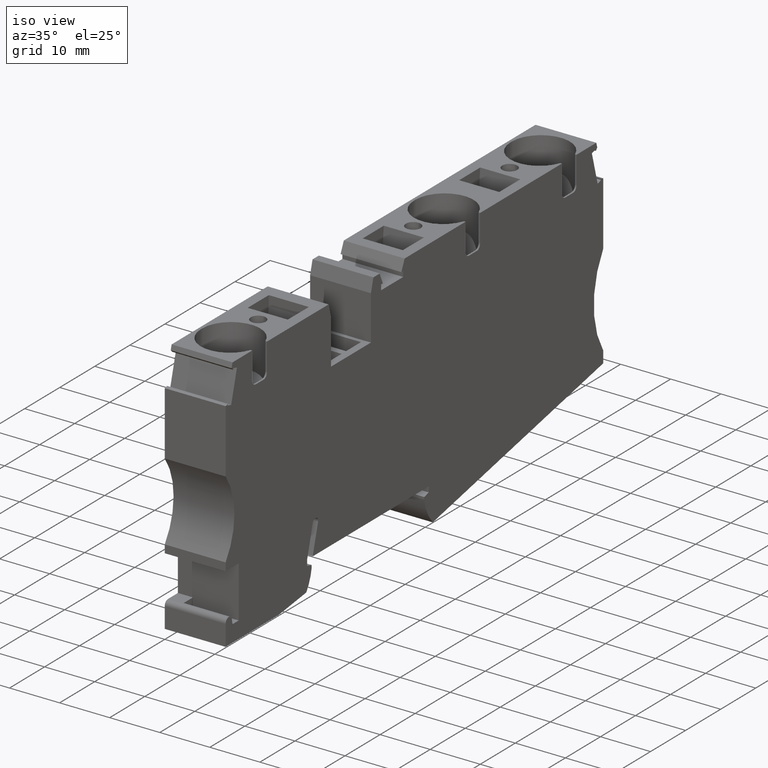
[diagram: clean part render]
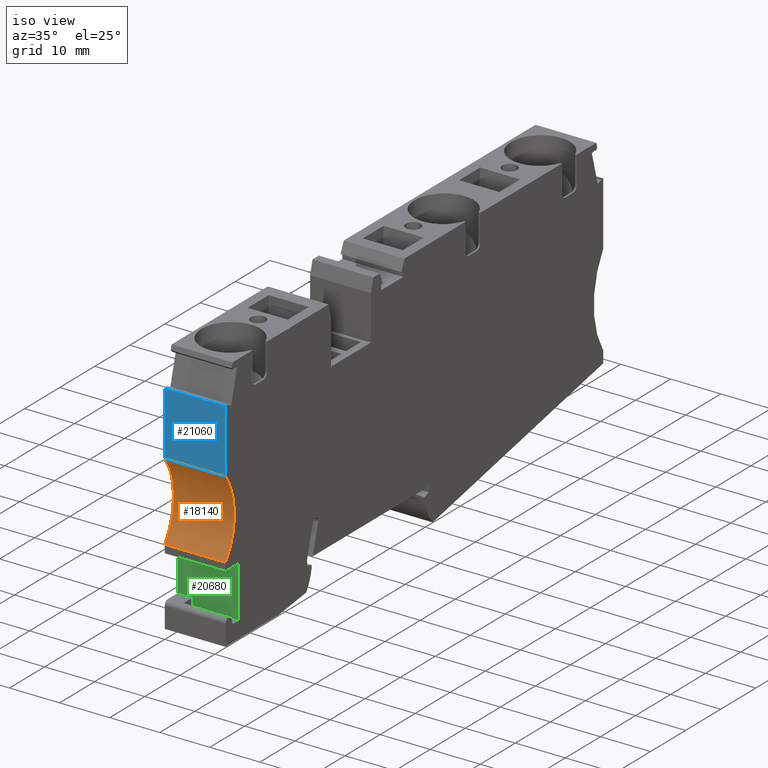
[diagram: same view with three faces highlighted in distinct colors, each labeled with its STEP entity id]
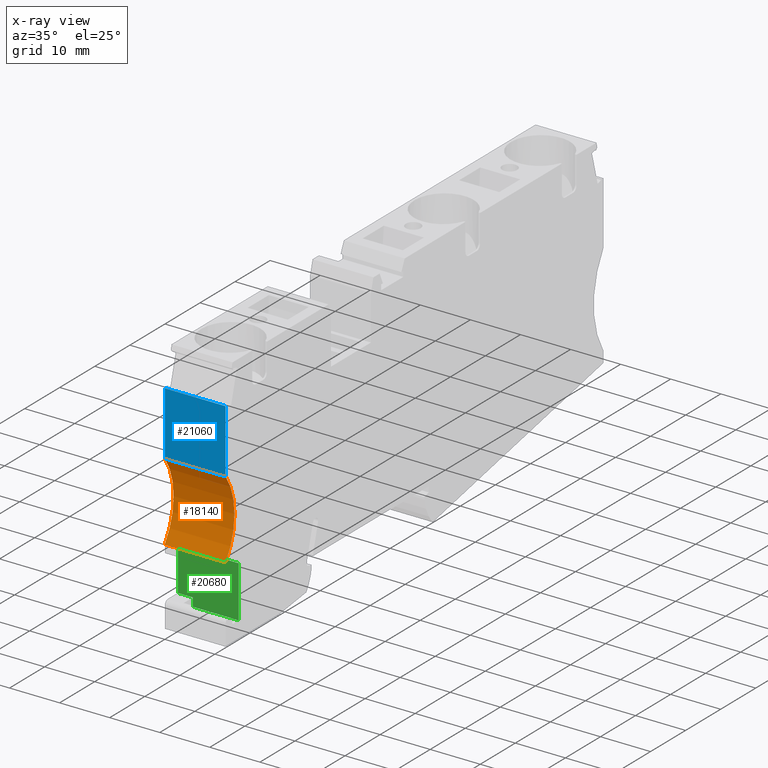
[diagram: x-ray of the same camera — body ghosted, the three highlighted faces saturated]
A machine part, iso view with three faces highlighted in distinct colors.
The next image is the same camera in x-ray (body ghosted, the three faces saturated) — at least one of them is partly hidden behind the body in this view.
Their STEP definitions:

[orange] entity #18140 — the highlighted cylindrical surface (partial cylindrical patch) has radius 13.2 mm, axis along (-1, 0, 0).
#2930=CARTESIAN_POINT('',(-42.4707610044104,23.8953463527098,-323.65));
#2940=VERTEX_POINT('',#2930);
#2970=CARTESIAN_POINT('',(-53.1561482224695,16.1453463527008,
-323.649999999954));
#2980=DIRECTION('',(0.,0.,-1.));
#2990=DIRECTION('',(-1.,0.,0.));
#3000=AXIS2_PLACEMENT_3D('',#2970,#2980,#2990);
#3010=CIRCLE('',#3000,13.2);
#3020=CARTESIAN_POINT('',(-42.4707610044104,8.39534635269172,-323.65));
#3030=VERTEX_POINT('',#3020);
#3040=EDGE_CURVE('',#2940,#3030,#3010,.T.);
#6800=CARTESIAN_POINT('',(-42.4707610044104,8.39534635269172,-311.5));
#6810=VERTEX_POINT('',#6800);
#6840=CARTESIAN_POINT('',(-53.1561482224695,16.1453463527008,
-311.500000000187));
#6850=DIRECTION('',(0.,0.,-1.));
#6860=DIRECTION('',(-1.,0.,0.));
#6870=AXIS2_PLACEMENT_3D('',#6840,#6850,#6860);
#6880=CIRCLE('',#6870,13.2);
#6890=CARTESIAN_POINT('',(-42.4707610044104,23.8953463527098,-311.5));
#6900=VERTEX_POINT('',#6890);
#6910=EDGE_CURVE('',#6900,#6810,#6880,.T.);
#17930=CARTESIAN_POINT('',(-53.1561482224695,16.1453463527008,
-323.649999999954));
#17940=DIRECTION('',(0.,0.,-1.));
#17950=DIRECTION('',(-1.,0.,0.));
#17960=AXIS2_PLACEMENT_3D('',#17930,#17940,#17950);
#17970=CYLINDRICAL_SURFACE('',#17960,13.2);
#17980=ORIENTED_EDGE('',*,*,#3040,.T.);
#17990=CARTESIAN_POINT('',(-42.4707610044105,23.8953463527098,
-323.649999999954));
#18000=DIRECTION('',(0.,0.,-1.));
#18010=VECTOR('',#18000,1.);
#18020=LINE('',#17990,#18010);
#18030=EDGE_CURVE('',#6900,#2940,#18020,.T.);
#18040=ORIENTED_EDGE('',*,*,#18030,.T.);
#18050=ORIENTED_EDGE('',*,*,#6910,.F.);
#18060=CARTESIAN_POINT('',(-42.4707610044104,8.39534635269172,
-323.649999999954));
#18070=DIRECTION('',(0.,0.,-1.));
#18080=VECTOR('',#18070,1.);
#18090=LINE('',#18060,#18080);
#18100=EDGE_CURVE('',#6810,#3030,#18090,.T.);
#18110=ORIENTED_EDGE('',*,*,#18100,.F.);
#18120=EDGE_LOOP('',(#18110,#18050,#18040,#17980));
#18130=FACE_OUTER_BOUND('',#18120,.T.);
#18140=ADVANCED_FACE('',(#18130),#17970,.F.);

[blue] entity #21060 — the highlighted planar face has unit normal (0, 1, 0).
#2850=CARTESIAN_POINT('',(-42.4707610044105,36.5906133774011,-323.65));
#2860=VERTEX_POINT('',#2850);
#2890=CARTESIAN_POINT('',(-42.4707610044105,-1.77635683940025E-15,
-323.649999999954));
#2900=DIRECTION('',(1.11022302462516E-16,-1.,0.));
#2910=VECTOR('',#2900,1.);
#2920=LINE('',#2890,#2910);
#2930=CARTESIAN_POINT('',(-42.4707610044104,23.8953463527098,-323.65));
#2940=VERTEX_POINT('',#2930);
#2950=EDGE_CURVE('',#2860,#2940,#2920,.T.);
#6890=CARTESIAN_POINT('',(-42.4707610044104,23.8953463527098,-311.5));
#6900=VERTEX_POINT('',#6890);
#6930=CARTESIAN_POINT('',(-42.4707610044105,-1.77635683940025E-15,
-311.500000000187));
#6940=DIRECTION('',(1.11022302462516E-16,-1.,0.));
#6950=VECTOR('',#6940,1.);
#6960=LINE('',#6930,#6950);
#6970=CARTESIAN_POINT('',(-42.4707610044105,36.5906133774011,-311.5));
#6980=VERTEX_POINT('',#6970);
#6990=EDGE_CURVE('',#6980,#6900,#6960,.T.);
#17770=CARTESIAN_POINT('',(-42.4707610044105,36.5906133774011,
-323.649999999954));
#17780=DIRECTION('',(0.,0.,-1.));
#17790=VECTOR('',#17780,1.);
#17800=LINE('',#17770,#17790);
#17810=EDGE_CURVE('',#6980,#2860,#17800,.T.);
#17990=CARTESIAN_POINT('',(-42.4707610044105,23.8953463527098,
-323.649999999954));
#18000=DIRECTION('',(0.,0.,-1.));
#18010=VECTOR('',#18000,1.);
#18020=LINE('',#17990,#18010);
#18030=EDGE_CURVE('',#6900,#2940,#18020,.T.);
#20950=CARTESIAN_POINT('',(-42.4707610044105,36.2836825822072,
-323.649999999954));
#20960=DIRECTION('',(1.,1.11022302462516E-16,-0.));
#20970=DIRECTION('',(-1.11022302462516E-16,1.,0.));
#20980=AXIS2_PLACEMENT_3D('',#20950,#20960,#20970);
#20990=PLANE('',#20980);
#21000=ORIENTED_EDGE('',*,*,#2950,.T.);
#21010=ORIENTED_EDGE('',*,*,#17810,.T.);
#21020=ORIENTED_EDGE('',*,*,#6990,.F.);
#21030=ORIENTED_EDGE('',*,*,#18030,.F.);
#21040=EDGE_LOOP('',(#21030,#21020,#21010,#21000));
#21050=FACE_OUTER_BOUND('',#21040,.T.);
#21060=ADVANCED_FACE('',(#21050),#20990,.F.);

[green] entity #20680 — the highlighted planar face has unit normal (0, -1, 0).
#3180=CARTESIAN_POINT('',(-38.7207757619092,6.79534635270041,-323.65));
#3190=VERTEX_POINT('',#3180);
#3220=CARTESIAN_POINT('',(-38.7207757619092,0.,-323.65));
#3230=DIRECTION('',(0.,1.,0.));
#3240=VECTOR('',#3230,1.);
#3250=LINE('',#3220,#3240);
#3260=CARTESIAN_POINT('',(-38.7207757619092,-1.80465364729786,-323.65));
#3270=VERTEX_POINT('',#3260);
#3280=EDGE_CURVE('',#3270,#3190,#3250,.T.);
#6560=CARTESIAN_POINT('',(-38.7207757619092,-3.5167326861757,-311.5));
#6570=VERTEX_POINT('',#6560);
#6600=CARTESIAN_POINT('',(-38.7207757619092,-2.27290547394301,
-311.500000000187));
#6610=DIRECTION('',(0.,1.,0.));
#6620=VECTOR('',#6610,1.);
#6630=LINE('',#6600,#6620);
#6640=CARTESIAN_POINT('',(-38.7207757619092,6.79534635270041,-311.5));
#6650=VERTEX_POINT('',#6640);
#6660=EDGE_CURVE('',#6570,#6650,#6630,.T.);
#18350=CARTESIAN_POINT('',(-38.7207757619092,6.79534635270041,-311.5));
#18360=DIRECTION('',(0.,0.,1.));
#18370=VECTOR('',#18360,1.);
#18380=LINE('',#18350,#18370);
#18390=EDGE_CURVE('',#3190,#6650,#18380,.T.);
#18620=CARTESIAN_POINT('',(-38.7207757619092,-1.80465364729786,-320.65))
;
#18630=VERTEX_POINT('',#18620);
#18730=CARTESIAN_POINT('',(-38.7207757619092,-1.80465364729786,
-323.649999999954));
#18740=DIRECTION('',(0.,0.,1.));
#18750=VECTOR('',#18740,1.);
#18760=LINE('',#18730,#18750);
#18770=EDGE_CURVE('',#3270,#18630,#18760,.T.);
#20430=CARTESIAN_POINT('',(-38.7207757619092,-1.80465364729786,-311.5));
#20440=DIRECTION('',(-1.,0.,0.));
#20450=DIRECTION('',(0.,1.,0.));
#20460=AXIS2_PLACEMENT_3D('',#20430,#20440,#20450);
#20470=PLANE('',#20460);
#20480=CARTESIAN_POINT('',(-38.7207757619092,-3.5167326861757,
-323.649999999954));
#20490=DIRECTION('',(0.,0.,-1.));
#20500=VECTOR('',#20490,1.);
#20510=LINE('',#20480,#20500);
#20520=CARTESIAN_POINT('',(-38.7207757619092,-3.5167326861757,-320.65));
#20530=VERTEX_POINT('',#20520);
#20540=EDGE_CURVE('',#6570,#20530,#20510,.T.);
#20550=ORIENTED_EDGE('',*,*,#20540,.F.);
#20560=CARTESIAN_POINT('',(-38.7207757619092,-2.27290547394301,-320.65))
;
#20570=DIRECTION('',(0.,-1.,0.));
#20580=VECTOR('',#20570,1.);
#20590=LINE('',#20560,#20580);
#20600=EDGE_CURVE('',#18630,#20530,#20590,.T.);
#20610=ORIENTED_EDGE('',*,*,#20600,.T.);
#20620=ORIENTED_EDGE('',*,*,#18770,.T.);
#20630=ORIENTED_EDGE('',*,*,#3280,.F.);
#20640=ORIENTED_EDGE('',*,*,#18390,.F.);
#20650=ORIENTED_EDGE('',*,*,#6660,.T.);
#20660=EDGE_LOOP('',(#20650,#20640,#20630,#20620,#20610,#20550));
#20670=FACE_OUTER_BOUND('',#20660,.T.);
#20680=ADVANCED_FACE('',(#20670),#20470,.T.);